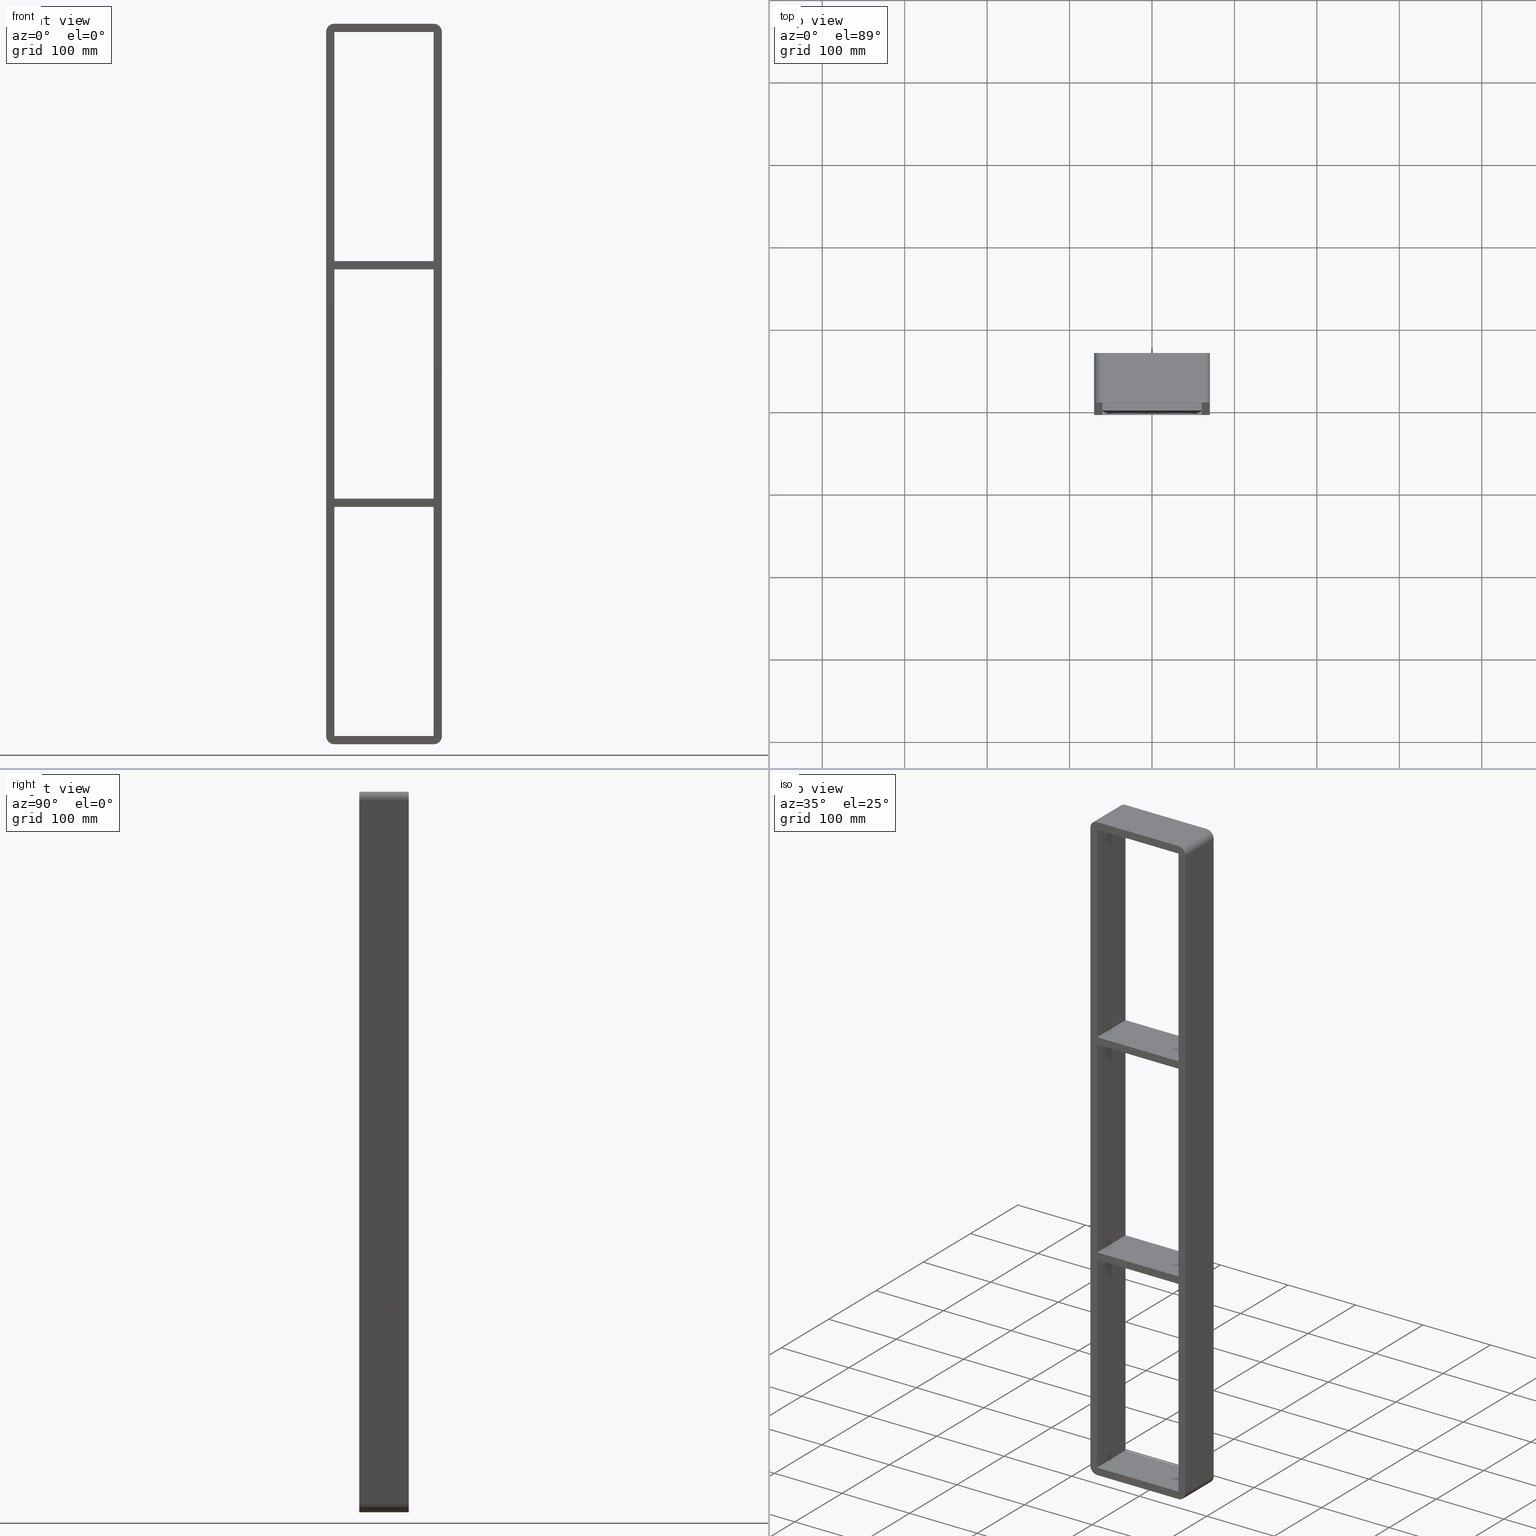
[diagram: canonical four-view strip — front | top / right | iso, engineering-drawing reading convention]
A machine part, canonical four-view strip (front | top / right | iso — engineering-drawing reading convention). The complete STEP part file that produces these views, byte-faithful:
ISO-10303-21;
HEADER;
/****************************************************************
 * Generated by software with PDElib inside                    *
 * PDElib Version v51a, created Wed 11/30/2011                  *
 * ITI Transcendata (http://www.transcendata.com/)              *
 ****************************************************************/
FILE_DESCRIPTION((''),'2;1');
FILE_NAME('C:\\RoxtecConfigurator\\CreatedFiles\\STEP\\S8+8+8X1.stp','2013-06-28T14:14:56',(''),(''),'Autodesk Inventor 2013','Autodesk Inventor 2013','');
FILE_SCHEMA(('AUTOMOTIVE_DESIGN { 1 0 10303 214 1 1 1 1 }'));
ENDSEC;
DATA;
#5=APPLICATION_CONTEXT('automotive design');
#6=APPLICATION_PROTOCOL_DEFINITION('International Standard','automotive_design',2001,#5);
#7=PRODUCT_CONTEXT('',#5,'mechanical');
#8=PRODUCT('roxtec S_SF_G','roxtec S_SF_G',$,(#7));
#9=PRODUCT_RELATED_PRODUCT_CATEGORY('part',$,(#8));
#10=PRODUCT_DEFINITION_FORMATION('',$,#8);
#11=PRODUCT_DEFINITION_CONTEXT('part definition',#5,'design');
#12=PRODUCT_DEFINITION('',$,#10,#11);
#18=(NAMED_UNIT(*)PLANE_ANGLE_UNIT()SI_UNIT($,.RADIAN.));
#19=DIMENSIONAL_EXPONENTS(0.0,0.0,0.0,0.0,0.0,0.0,0.0);
#20=PLANE_ANGLE_MEASURE_WITH_UNIT(PLANE_ANGLE_MEASURE(0.0174532925),#18);
#24=(CONVERSION_BASED_UNIT('DEGREE',#20)NAMED_UNIT(#19)PLANE_ANGLE_UNIT());
#28=(NAMED_UNIT(*)SI_UNIT($,.STERADIAN.)SOLID_ANGLE_UNIT());
#32=(LENGTH_UNIT()NAMED_UNIT(*)SI_UNIT(.MILLI.,.METRE.));
#34=UNCERTAINTY_MEASURE_WITH_UNIT(LENGTH_MEASURE(0.01),#32,'DISTANCE_ACCURACY_VALUE','');
#36=(GEOMETRIC_REPRESENTATION_CONTEXT(3)GLOBAL_UNCERTAINTY_ASSIGNED_CONTEXT((#34))GLOBAL_UNIT_ASSIGNED_CONTEXT((#24,#28,#32))REPRESENTATION_CONTEXT('None','None'));
#37=AXIS2_PLACEMENT_3D('',#38,#39,#40);
#38=CARTESIAN_POINT('',(0.0,0.0,0.0));
#39=DIRECTION('',(0.0,0.0,1.0));
#40=DIRECTION('',(1.0,0.0,0.0));
#41=SHAPE_REPRESENTATION('',(#37),#36);
#42=PRODUCT_DEFINITION_SHAPE('','',#12);
#43=SHAPE_DEFINITION_REPRESENTATION(#42,#41);
#49=(NAMED_UNIT(*)PLANE_ANGLE_UNIT()SI_UNIT($,.RADIAN.));
#50=DIMENSIONAL_EXPONENTS(0.0,0.0,0.0,0.0,0.0,0.0,0.0);
#51=PLANE_ANGLE_MEASURE_WITH_UNIT(PLANE_ANGLE_MEASURE(0.0174532925),#49);
#55=(CONVERSION_BASED_UNIT('DEGREE',#51)NAMED_UNIT(#50)PLANE_ANGLE_UNIT());
#59=(NAMED_UNIT(*)SI_UNIT($,.STERADIAN.)SOLID_ANGLE_UNIT());
#63=(LENGTH_UNIT()NAMED_UNIT(*)SI_UNIT(.MILLI.,.METRE.));
#65=UNCERTAINTY_MEASURE_WITH_UNIT(LENGTH_MEASURE(0.000001),#63,'DISTANCE_ACCURACY_VALUE','');
#67=(GEOMETRIC_REPRESENTATION_CONTEXT(3)GLOBAL_UNCERTAINTY_ASSIGNED_CONTEXT((#65))GLOBAL_UNIT_ASSIGNED_CONTEXT((#55,#59,#63))REPRESENTATION_CONTEXT('','3D'));
#68=CARTESIAN_POINT('',(60.249999999996362,-3.0,138.99999999999062));
#69=DIRECTION('',(0.0,0.0,-1.0));
#70=DIRECTION('',(-1.0,0.0,0.0));
#71=AXIS2_PLACEMENT_3D('',#68,#69,#70);
#72=PLANE('',#71);
#73=CARTESIAN_POINT('',(60.249999999996362,-3.0,138.99999999999062));
#74=VERTEX_POINT('',#73);
#75=CARTESIAN_POINT('',(-60.249999999999687,-3.0,138.99999999999056));
#76=VERTEX_POINT('',#75);
#77=CARTESIAN_POINT('',(60.249999999996362,-3.0,138.99999999999062));
#78=DIRECTION('',(-1.0,0.0,0.0));
#79=VECTOR('',#78,120.49999999999605);
#80=LINE('',#77,#79);
#81=EDGE_CURVE('',#74,#76,#80,.T.);
#82=ORIENTED_EDGE('',*,*,#81,.T.);
#83=CARTESIAN_POINT('',(-60.249999999999687,57.0,138.99999999999056));
#84=VERTEX_POINT('',#83);
#85=CARTESIAN_POINT('',(-60.25,57.000000000000007,138.99999999999056));
#86=DIRECTION('',(0.0,-1.0,0.0));
#87=VECTOR('',#86,60.000000000000007);
#88=LINE('',#85,#87);
#89=EDGE_CURVE('',#84,#76,#88,.T.);
#90=ORIENTED_EDGE('',*,*,#89,.F.);
#91=CARTESIAN_POINT('',(60.249999999996362,57.0,138.99999999999062));
#92=VERTEX_POINT('',#91);
#93=CARTESIAN_POINT('',(60.249999999996362,57.0,138.99999999999062));
#94=DIRECTION('',(-1.0,0.0,0.0));
#95=VECTOR('',#94,120.49999999999605);
#96=LINE('',#93,#95);
#97=EDGE_CURVE('',#92,#84,#96,.T.);
#98=ORIENTED_EDGE('',*,*,#97,.F.);
#99=CARTESIAN_POINT('',(60.249999999999993,-3.0,138.99999999999062));
#100=DIRECTION('',(0.0,1.0,0.0));
#101=VECTOR('',#100,60.000000000000007);
#102=LINE('',#99,#101);
#103=EDGE_CURVE('',#74,#92,#102,.T.);
#104=ORIENTED_EDGE('',*,*,#103,.F.);
#105=EDGE_LOOP('',(#82,#90,#98,#104));
#106=FACE_OUTER_BOUND('',#105,.T.);
#107=ADVANCED_FACE('',(#106),#72,.T.);
#108=CARTESIAN_POINT('',(-60.249999999999687,-3.0,148.99999999999994));
#109=DIRECTION('',(0.0,0.0,1.0));
#110=DIRECTION('',(1.0,0.0,0.0));
#111=AXIS2_PLACEMENT_3D('',#108,#109,#110);
#112=PLANE('',#111);
#113=CARTESIAN_POINT('',(-60.249999999999687,-3.0,148.99999999999994));
#114=VERTEX_POINT('',#113);
#115=CARTESIAN_POINT('',(60.249999999999915,-3.0,148.99999999999994));
#116=VERTEX_POINT('',#115);
#117=CARTESIAN_POINT('',(-60.249999999999687,-3.0,148.99999999999994));
#118=DIRECTION('',(1.0,0.0,0.0));
#119=VECTOR('',#118,120.4999999999996);
#120=LINE('',#117,#119);
#121=EDGE_CURVE('',#114,#116,#120,.T.);
#122=ORIENTED_EDGE('',*,*,#121,.T.);
#123=CARTESIAN_POINT('',(60.249999999999915,57.0,148.99999999999994));
#124=VERTEX_POINT('',#123);
#125=CARTESIAN_POINT('',(60.25,57.000000000000007,148.99999999999997));
#126=DIRECTION('',(0.0,-1.0,0.0));
#127=VECTOR('',#126,60.000000000000007);
#128=LINE('',#125,#127);
#129=EDGE_CURVE('',#124,#116,#128,.T.);
#130=ORIENTED_EDGE('',*,*,#129,.F.);
#131=CARTESIAN_POINT('',(-60.249999999999687,57.0,148.99999999999994));
#132=VERTEX_POINT('',#131);
#133=CARTESIAN_POINT('',(-60.249999999999687,57.0,148.99999999999994));
#134=DIRECTION('',(1.0,0.0,0.0));
#135=VECTOR('',#134,120.4999999999996);
#136=LINE('',#133,#135);
#137=EDGE_CURVE('',#132,#124,#136,.T.);
#138=ORIENTED_EDGE('',*,*,#137,.F.);
#139=CARTESIAN_POINT('',(-60.25,-3.0,148.99999999999994));
#140=DIRECTION('',(0.0,1.0,0.0));
#141=VECTOR('',#140,60.000000000000007);
#142=LINE('',#139,#141);
#143=EDGE_CURVE('',#114,#132,#142,.T.);
#144=ORIENTED_EDGE('',*,*,#143,.F.);
#145=EDGE_LOOP('',(#122,#130,#138,#144));
#146=FACE_OUTER_BOUND('',#145,.T.);
#147=ADVANCED_FACE('',(#146),#112,.T.);
#148=CARTESIAN_POINT('',(-60.25,0.0,-427.0));
#149=DIRECTION('',(-1.0,0.0,0.0));
#150=DIRECTION('',(0.0,0.0,1.0));
#151=AXIS2_PLACEMENT_3D('',#148,#149,#150);
#152=PLANE('',#151);
#153=ORIENTED_EDGE('',*,*,#143,.T.);
#154=CARTESIAN_POINT('',(-60.250000000000014,57.0,427.0));
#155=VERTEX_POINT('',#154);
#156=CARTESIAN_POINT('',(-60.25,57.0,427.0));
#157=DIRECTION('',(0.0,0.0,-1.0));
#158=VECTOR('',#157,278.0);
#159=LINE('',#156,#158);
#160=EDGE_CURVE('',#155,#132,#159,.T.);
#161=ORIENTED_EDGE('',*,*,#160,.F.);
#162=CARTESIAN_POINT('',(-60.250000000000014,-3.0,427.0));
#163=VERTEX_POINT('',#162);
#164=CARTESIAN_POINT('',(-60.25,-3.0,427.00000000000011));
#165=DIRECTION('',(0.0,1.0,0.0));
#166=VECTOR('',#165,60.0);
#167=LINE('',#164,#166);
#168=EDGE_CURVE('',#163,#155,#167,.T.);
#169=ORIENTED_EDGE('',*,*,#168,.F.);
#170=CARTESIAN_POINT('',(-60.25,-3.0,148.99999999999997));
#171=DIRECTION('',(0.0,0.0,1.0));
#172=VECTOR('',#171,278.0);
#173=LINE('',#170,#172);
#174=EDGE_CURVE('',#114,#163,#173,.T.);
#175=ORIENTED_EDGE('',*,*,#174,.F.);
#176=EDGE_LOOP('',(#153,#161,#169,#175));
#177=FACE_OUTER_BOUND('',#176,.T.);
#178=ADVANCED_FACE('',(#177),#152,.F.);
#179=CARTESIAN_POINT('',(60.249999999999993,0.0,427.00000000000011));
#180=DIRECTION('',(1.0,0.0,0.0));
#181=DIRECTION('',(0.0,0.0,-1.0));
#182=AXIS2_PLACEMENT_3D('',#179,#180,#181);
#183=PLANE('',#182);
#184=ORIENTED_EDGE('',*,*,#103,.T.);
#185=CARTESIAN_POINT('',(60.249999999999915,57.0,-139.00000000000006));
#186=VERTEX_POINT('',#185);
#187=CARTESIAN_POINT('',(60.249999999999993,57.0,-139.00000000000003));
#188=DIRECTION('',(0.0,0.0,1.0));
#189=VECTOR('',#188,277.99999999999068);
#190=LINE('',#187,#189);
#191=EDGE_CURVE('',#186,#92,#190,.T.);
#192=ORIENTED_EDGE('',*,*,#191,.F.);
#193=CARTESIAN_POINT('',(60.249999999999915,-3.0,-139.00000000000006));
#194=VERTEX_POINT('',#193);
#195=CARTESIAN_POINT('',(60.25,57.000000000000007,-139.00000000000006));
#196=DIRECTION('',(0.0,-1.0,0.0));
#197=VECTOR('',#196,60.000000000000007);
#198=LINE('',#195,#197);
#199=EDGE_CURVE('',#186,#194,#198,.T.);
#200=ORIENTED_EDGE('',*,*,#199,.T.);
#201=CARTESIAN_POINT('',(60.249999999999993,-3.0,138.99999999999062));
#202=DIRECTION('',(0.0,0.0,-1.0));
#203=VECTOR('',#202,277.99999999999068);
#204=LINE('',#201,#203);
#205=EDGE_CURVE('',#74,#194,#204,.T.);
#206=ORIENTED_EDGE('',*,*,#205,.F.);
#207=EDGE_LOOP('',(#184,#192,#200,#206));
#208=FACE_OUTER_BOUND('',#207,.T.);
#209=ADVANCED_FACE('',(#208),#183,.F.);
#210=CARTESIAN_POINT('',(60.249999999999993,0.0,427.00000000000011));
#211=DIRECTION('',(1.0,0.0,0.0));
#212=DIRECTION('',(0.0,0.0,-1.0));
#213=AXIS2_PLACEMENT_3D('',#210,#211,#212);
#214=PLANE('',#213);
#215=ORIENTED_EDGE('',*,*,#129,.T.);
#216=CARTESIAN_POINT('',(60.249999999999993,-3.0,427.0));
#217=VERTEX_POINT('',#216);
#218=CARTESIAN_POINT('',(60.249999999999993,-3.0,427.0));
#219=DIRECTION('',(0.0,0.0,-1.0));
#220=VECTOR('',#219,278.00000000000006);
#221=LINE('',#218,#220);
#222=EDGE_CURVE('',#217,#116,#221,.T.);
#223=ORIENTED_EDGE('',*,*,#222,.F.);
#224=CARTESIAN_POINT('',(60.249999999999993,57.0,427.0));
#225=VERTEX_POINT('',#224);
#226=CARTESIAN_POINT('',(60.249999999999993,-3.0,427.00000000000011));
#227=DIRECTION('',(0.0,1.0,0.0));
#228=VECTOR('',#227,60.0);
#229=LINE('',#226,#228);
#230=EDGE_CURVE('',#217,#225,#229,.T.);
#231=ORIENTED_EDGE('',*,*,#230,.T.);
#232=CARTESIAN_POINT('',(60.249999999999993,57.0,148.99999999999994));
#233=DIRECTION('',(0.0,0.0,1.0));
#234=VECTOR('',#233,278.00000000000006);
#235=LINE('',#232,#234);
#236=EDGE_CURVE('',#124,#225,#235,.T.);
#237=ORIENTED_EDGE('',*,*,#236,.F.);
#238=EDGE_LOOP('',(#215,#223,#231,#237));
#239=FACE_OUTER_BOUND('',#238,.T.);
#240=ADVANCED_FACE('',(#239),#214,.F.);
#241=CARTESIAN_POINT('',(60.249999999996362,-3.0,-149.00000000000941));
#242=DIRECTION('',(0.0,0.0,-1.0));
#243=DIRECTION('',(-1.0,0.0,0.0));
#244=AXIS2_PLACEMENT_3D('',#241,#242,#243);
#245=PLANE('',#244);
#246=CARTESIAN_POINT('',(60.249999999996362,-3.0,-149.00000000000941));
#247=VERTEX_POINT('',#246);
#248=CARTESIAN_POINT('',(-60.249999999999687,-3.0,-149.00000000000944));
#249=VERTEX_POINT('',#248);
#250=CARTESIAN_POINT('',(60.249999999996362,-3.0,-149.00000000000941));
#251=DIRECTION('',(-1.0,0.0,0.0));
#252=VECTOR('',#251,120.49999999999605);
#253=LINE('',#250,#252);
#254=EDGE_CURVE('',#247,#249,#253,.T.);
#255=ORIENTED_EDGE('',*,*,#254,.T.);
#256=CARTESIAN_POINT('',(-60.249999999999687,57.0,-149.00000000000944));
#257=VERTEX_POINT('',#256);
#258=CARTESIAN_POINT('',(-60.25,57.000000000000007,-149.00000000000946));
#259=DIRECTION('',(0.0,-1.0,0.0));
#260=VECTOR('',#259,60.000000000000007);
#261=LINE('',#258,#260);
#262=EDGE_CURVE('',#257,#249,#261,.T.);
#263=ORIENTED_EDGE('',*,*,#262,.F.);
#264=CARTESIAN_POINT('',(60.249999999996362,57.0,-149.00000000000941));
#265=VERTEX_POINT('',#264);
#266=CARTESIAN_POINT('',(60.249999999996362,57.0,-149.00000000000941));
#267=DIRECTION('',(-1.0,0.0,0.0));
#268=VECTOR('',#267,120.49999999999605);
#269=LINE('',#266,#268);
#270=EDGE_CURVE('',#265,#257,#269,.T.);
#271=ORIENTED_EDGE('',*,*,#270,.F.);
#272=CARTESIAN_POINT('',(60.249999999999993,-3.0,-149.00000000000938));
#273=DIRECTION('',(0.0,1.0,0.0));
#274=VECTOR('',#273,60.000000000000007);
#275=LINE('',#272,#274);
#276=EDGE_CURVE('',#247,#265,#275,.T.);
#277=ORIENTED_EDGE('',*,*,#276,.F.);
#278=EDGE_LOOP('',(#255,#263,#271,#277));
#279=FACE_OUTER_BOUND('',#278,.T.);
#280=ADVANCED_FACE('',(#279),#245,.T.);
#281=CARTESIAN_POINT('',(-60.249999999999687,-3.0,-139.00000000000006));
#282=DIRECTION('',(0.0,0.0,1.0));
#283=DIRECTION('',(1.0,0.0,0.0));
#284=AXIS2_PLACEMENT_3D('',#281,#282,#283);
#285=PLANE('',#284);
#286=CARTESIAN_POINT('',(-60.249999999999687,-3.0,-139.00000000000006));
#287=VERTEX_POINT('',#286);
#288=CARTESIAN_POINT('',(-60.249999999999687,-3.0,-139.00000000000006));
#289=DIRECTION('',(1.0,0.0,0.0));
#290=VECTOR('',#289,120.4999999999996);
#291=LINE('',#288,#290);
#292=EDGE_CURVE('',#287,#194,#291,.T.);
#293=ORIENTED_EDGE('',*,*,#292,.T.);
#294=ORIENTED_EDGE('',*,*,#199,.F.);
#295=CARTESIAN_POINT('',(-60.249999999999687,57.0,-139.00000000000006));
#296=VERTEX_POINT('',#295);
#297=CARTESIAN_POINT('',(-60.249999999999687,57.0,-139.00000000000006));
#298=DIRECTION('',(1.0,0.0,0.0));
#299=VECTOR('',#298,120.4999999999996);
#300=LINE('',#297,#299);
#301=EDGE_CURVE('',#296,#186,#300,.T.);
#302=ORIENTED_EDGE('',*,*,#301,.F.);
#303=CARTESIAN_POINT('',(-60.25,-3.0,-139.00000000000006));
#304=DIRECTION('',(0.0,1.0,0.0));
#305=VECTOR('',#304,60.000000000000007);
#306=LINE('',#303,#305);
#307=EDGE_CURVE('',#287,#296,#306,.T.);
#308=ORIENTED_EDGE('',*,*,#307,.F.);
#309=EDGE_LOOP('',(#293,#294,#302,#308));
#310=FACE_OUTER_BOUND('',#309,.T.);
#311=ADVANCED_FACE('',(#310),#285,.T.);
#312=CARTESIAN_POINT('',(-60.25,0.0,-427.0));
#313=DIRECTION('',(-1.0,0.0,0.0));
#314=DIRECTION('',(0.0,0.0,1.0));
#315=AXIS2_PLACEMENT_3D('',#312,#313,#314);
#316=PLANE('',#315);
#317=ORIENTED_EDGE('',*,*,#89,.T.);
#318=CARTESIAN_POINT('',(-60.25,-3.0,-139.00000000000006));
#319=DIRECTION('',(0.0,0.0,1.0));
#320=VECTOR('',#319,277.99999999999068);
#321=LINE('',#318,#320);
#322=EDGE_CURVE('',#287,#76,#321,.T.);
#323=ORIENTED_EDGE('',*,*,#322,.F.);
#324=ORIENTED_EDGE('',*,*,#307,.T.);
#325=CARTESIAN_POINT('',(-60.25,57.0,138.99999999999059));
#326=DIRECTION('',(0.0,0.0,-1.0));
#327=VECTOR('',#326,277.99999999999068);
#328=LINE('',#325,#327);
#329=EDGE_CURVE('',#84,#296,#328,.T.);
#330=ORIENTED_EDGE('',*,*,#329,.F.);
#331=EDGE_LOOP('',(#317,#323,#324,#330));
#332=FACE_OUTER_BOUND('',#331,.T.);
#333=ADVANCED_FACE('',(#332),#316,.F.);
#334=CARTESIAN_POINT('',(60.249999999999993,0.0,427.00000000000011));
#335=DIRECTION('',(1.0,0.0,0.0));
#336=DIRECTION('',(0.0,0.0,-1.0));
#337=AXIS2_PLACEMENT_3D('',#334,#335,#336);
#338=PLANE('',#337);
#339=ORIENTED_EDGE('',*,*,#276,.T.);
#340=CARTESIAN_POINT('',(60.249999999999993,57.0,-427.0));
#341=VERTEX_POINT('',#340);
#342=CARTESIAN_POINT('',(60.249999999999993,57.0,-427.0));
#343=DIRECTION('',(0.0,0.0,1.0));
#344=VECTOR('',#343,277.99999999999056);
#345=LINE('',#342,#344);
#346=EDGE_CURVE('',#341,#265,#345,.T.);
#347=ORIENTED_EDGE('',*,*,#346,.F.);
#348=CARTESIAN_POINT('',(60.249999999999993,-3.0,-427.0));
#349=VERTEX_POINT('',#348);
#350=CARTESIAN_POINT('',(60.249999999999993,57.0,-427.0));
#351=DIRECTION('',(0.0,-1.0,0.0));
#352=VECTOR('',#351,60.0);
#353=LINE('',#350,#352);
#354=EDGE_CURVE('',#341,#349,#353,.T.);
#355=ORIENTED_EDGE('',*,*,#354,.T.);
#356=CARTESIAN_POINT('',(60.249999999999993,-3.0,-149.00000000000946));
#357=DIRECTION('',(0.0,0.0,-1.0));
#358=VECTOR('',#357,277.99999999999056);
#359=LINE('',#356,#358);
#360=EDGE_CURVE('',#247,#349,#359,.T.);
#361=ORIENTED_EDGE('',*,*,#360,.F.);
#362=EDGE_LOOP('',(#339,#347,#355,#361));
#363=FACE_OUTER_BOUND('',#362,.T.);
#364=ADVANCED_FACE('',(#363),#338,.F.);
#365=CARTESIAN_POINT('',(60.25,0.0,-426.99999999999994));
#366=DIRECTION('',(0.0,1.0,0.0));
#367=DIRECTION('',(0.707106781186547,0.0,-0.707106781186547));
#368=AXIS2_PLACEMENT_3D('',#365,#366,#367);
#369=CYLINDRICAL_SURFACE('',#368,10.0);
#370=CARTESIAN_POINT('',(60.25,57.0,-436.99999999999994));
#371=VERTEX_POINT('',#370);
#372=CARTESIAN_POINT('',(70.25,57.0,-426.99999999999994));
#373=VERTEX_POINT('',#372);
#374=CARTESIAN_POINT('',(60.25,57.0,-426.99999999999994));
#375=DIRECTION('',(0.0,-1.0,0.0));
#376=DIRECTION('',(0.707106781186547,0.0,-0.707106781186547));
#377=AXIS2_PLACEMENT_3D('',#374,#375,#376);
#378=CIRCLE('',#377,9.999999999999998);
#379=EDGE_CURVE('',#371,#373,#378,.T.);
#380=ORIENTED_EDGE('',*,*,#379,.T.);
#381=CARTESIAN_POINT('',(70.25,-3.0,-426.99999999999994));
#382=VERTEX_POINT('',#381);
#383=CARTESIAN_POINT('',(70.25,57.0,-426.99999999999994));
#384=DIRECTION('',(0.0,-1.0,0.0));
#385=VECTOR('',#384,60.0);
#386=LINE('',#383,#385);
#387=EDGE_CURVE('',#373,#382,#386,.T.);
#388=ORIENTED_EDGE('',*,*,#387,.T.);
#389=CARTESIAN_POINT('',(60.25,-3.0,-436.99999999999994));
#390=VERTEX_POINT('',#389);
#391=CARTESIAN_POINT('',(60.25,-3.0,-426.99999999999994));
#392=DIRECTION('',(0.0,1.0,0.0));
#393=DIRECTION('',(0.707106781186547,0.0,-0.707106781186547));
#394=AXIS2_PLACEMENT_3D('',#391,#392,#393);
#395=CIRCLE('',#394,9.999999999999998);
#396=EDGE_CURVE('',#382,#390,#395,.T.);
#397=ORIENTED_EDGE('',*,*,#396,.T.);
#398=CARTESIAN_POINT('',(60.25,-3.0,-436.99999999999994));
#399=DIRECTION('',(0.0,1.0,0.0));
#400=VECTOR('',#399,60.0);
#401=LINE('',#398,#400);
#402=EDGE_CURVE('',#390,#371,#401,.T.);
#403=ORIENTED_EDGE('',*,*,#402,.T.);
#404=EDGE_LOOP('',(#380,#388,#397,#403));
#405=FACE_OUTER_BOUND('',#404,.T.);
#406=ADVANCED_FACE('',(#405),#369,.T.);
#407=CARTESIAN_POINT('',(0.0,-3.0,6.723716E-014));
#408=DIRECTION('',(0.0,1.0,0.0));
#409=DIRECTION('',(0.0,0.0,1.0));
#410=AXIS2_PLACEMENT_3D('',#407,#408,#409);
#411=PLANE('',#410);
#412=ORIENTED_EDGE('',*,*,#396,.F.);
#413=CARTESIAN_POINT('',(70.25,-3.0,427.00000000000011));
#414=VERTEX_POINT('',#413);
#415=CARTESIAN_POINT('',(70.25,-3.0,-426.99999999999989));
#416=DIRECTION('',(0.0,0.0,1.0));
#417=VECTOR('',#416,854.0);
#418=LINE('',#415,#417);
#419=EDGE_CURVE('',#382,#414,#418,.T.);
#420=ORIENTED_EDGE('',*,*,#419,.T.);
#421=CARTESIAN_POINT('',(60.25,-3.0,437.00000000000011));
#422=VERTEX_POINT('',#421);
#423=CARTESIAN_POINT('',(60.25,-3.0,427.00000000000011));
#424=DIRECTION('',(0.0,1.0,0.0));
#425=DIRECTION('',(0.707106781186547,0.0,0.707106781186547));
#426=AXIS2_PLACEMENT_3D('',#423,#424,#425);
#427=CIRCLE('',#426,9.999999999999998);
#428=EDGE_CURVE('',#422,#414,#427,.T.);
#429=ORIENTED_EDGE('',*,*,#428,.F.);
#430=CARTESIAN_POINT('',(-60.25,-3.0,437.00000000000011));
#431=VERTEX_POINT('',#430);
#432=CARTESIAN_POINT('',(60.25,-3.0,437.00000000000011));
#433=DIRECTION('',(-1.0,0.0,0.0));
#434=VECTOR('',#433,120.5);
#435=LINE('',#432,#434);
#436=EDGE_CURVE('',#422,#431,#435,.T.);
#437=ORIENTED_EDGE('',*,*,#436,.T.);
#438=CARTESIAN_POINT('',(-70.25,-3.0,427.00000000000011));
#439=VERTEX_POINT('',#438);
#440=CARTESIAN_POINT('',(-60.25,-3.0,427.00000000000011));
#441=DIRECTION('',(0.0,1.0,0.0));
#442=DIRECTION('',(-0.707106781186547,0.0,0.707106781186547));
#443=AXIS2_PLACEMENT_3D('',#440,#441,#442);
#444=CIRCLE('',#443,9.999999999999998);
#445=EDGE_CURVE('',#439,#431,#444,.T.);
#446=ORIENTED_EDGE('',*,*,#445,.F.);
#447=CARTESIAN_POINT('',(-70.25,-3.0,-426.99999999999994));
#448=VERTEX_POINT('',#447);
#449=CARTESIAN_POINT('',(-70.25,-3.0,427.00000000000006));
#450=DIRECTION('',(0.0,0.0,-1.0));
#451=VECTOR('',#450,854.0);
#452=LINE('',#449,#451);
#453=EDGE_CURVE('',#439,#448,#452,.T.);
#454=ORIENTED_EDGE('',*,*,#453,.T.);
#455=CARTESIAN_POINT('',(-60.25,-3.0,-436.99999999999994));
#456=VERTEX_POINT('',#455);
#457=CARTESIAN_POINT('',(-60.25,-3.0,-426.99999999999994));
#458=DIRECTION('',(0.0,1.0,0.0));
#459=DIRECTION('',(-0.707106781186547,0.0,-0.707106781186547));
#460=AXIS2_PLACEMENT_3D('',#457,#458,#459);
#461=CIRCLE('',#460,9.999999999999998);
#462=EDGE_CURVE('',#456,#448,#461,.T.);
#463=ORIENTED_EDGE('',*,*,#462,.F.);
#464=CARTESIAN_POINT('',(-60.25,-3.0,-436.99999999999994));
#465=DIRECTION('',(1.0,0.0,0.0));
#466=VECTOR('',#465,120.5);
#467=LINE('',#464,#466);
#468=EDGE_CURVE('',#456,#390,#467,.T.);
#469=ORIENTED_EDGE('',*,*,#468,.T.);
#470=EDGE_LOOP('',(#412,#420,#429,#437,#446,#454,#463,#469));
#471=FACE_OUTER_BOUND('',#470,.T.);
#472=ORIENTED_EDGE('',*,*,#174,.T.);
#473=CARTESIAN_POINT('',(-60.250000000000014,-3.0,427.00000000000011));
#474=DIRECTION('',(1.0,0.0,0.0));
#475=VECTOR('',#474,120.50000000000001);
#476=LINE('',#473,#475);
#477=EDGE_CURVE('',#163,#217,#476,.T.);
#478=ORIENTED_EDGE('',*,*,#477,.T.);
#479=ORIENTED_EDGE('',*,*,#222,.T.);
#480=ORIENTED_EDGE('',*,*,#121,.F.);
#481=EDGE_LOOP('',(#472,#478,#479,#480));
#482=FACE_BOUND('',#481,.T.);
#483=ORIENTED_EDGE('',*,*,#81,.F.);
#484=ORIENTED_EDGE('',*,*,#205,.T.);
#485=ORIENTED_EDGE('',*,*,#292,.F.);
#486=ORIENTED_EDGE('',*,*,#322,.T.);
#487=EDGE_LOOP('',(#483,#484,#485,#486));
#488=FACE_BOUND('',#487,.T.);
#489=ORIENTED_EDGE('',*,*,#254,.F.);
#490=ORIENTED_EDGE('',*,*,#360,.T.);
#491=CARTESIAN_POINT('',(-60.250000000000014,-3.0,-427.0));
#492=VERTEX_POINT('',#491);
#493=CARTESIAN_POINT('',(60.249999999999993,-3.0,-427.0));
#494=DIRECTION('',(-1.0,0.0,0.0));
#495=VECTOR('',#494,120.5);
#496=LINE('',#493,#495);
#497=EDGE_CURVE('',#349,#492,#496,.T.);
#498=ORIENTED_EDGE('',*,*,#497,.T.);
#499=CARTESIAN_POINT('',(-60.25,-3.0,-427.0));
#500=DIRECTION('',(0.0,0.0,1.0));
#501=VECTOR('',#500,277.99999999999056);
#502=LINE('',#499,#501);
#503=EDGE_CURVE('',#492,#249,#502,.T.);
#504=ORIENTED_EDGE('',*,*,#503,.T.);
#505=EDGE_LOOP('',(#489,#490,#498,#504));
#506=FACE_BOUND('',#505,.T.);
#507=ADVANCED_FACE('',(#471,#482,#488,#506),#411,.F.);
#508=CARTESIAN_POINT('',(70.25,0.0,437.00000000000011));
#509=DIRECTION('',(1.0,0.0,0.0));
#510=DIRECTION('',(0.0,0.0,-1.0));
#511=AXIS2_PLACEMENT_3D('',#508,#509,#510);
#512=PLANE('',#511);
#513=ORIENTED_EDGE('',*,*,#387,.F.);
#514=CARTESIAN_POINT('',(70.25,57.0,427.00000000000011));
#515=VERTEX_POINT('',#514);
#516=CARTESIAN_POINT('',(70.25,57.0,427.00000000000011));
#517=DIRECTION('',(0.0,0.0,-1.0));
#518=VECTOR('',#517,854.0);
#519=LINE('',#516,#518);
#520=EDGE_CURVE('',#515,#373,#519,.T.);
#521=ORIENTED_EDGE('',*,*,#520,.F.);
#522=CARTESIAN_POINT('',(70.25,-3.0,427.00000000000011));
#523=DIRECTION('',(0.0,1.0,0.0));
#524=VECTOR('',#523,60.0);
#525=LINE('',#522,#524);
#526=EDGE_CURVE('',#414,#515,#525,.T.);
#527=ORIENTED_EDGE('',*,*,#526,.F.);
#528=ORIENTED_EDGE('',*,*,#419,.F.);
#529=EDGE_LOOP('',(#513,#521,#527,#528));
#530=FACE_OUTER_BOUND('',#529,.T.);
#531=ADVANCED_FACE('',(#530),#512,.T.);
#532=CARTESIAN_POINT('',(60.25,0.0,427.00000000000011));
#533=DIRECTION('',(0.0,-1.0,0.0));
#534=DIRECTION('',(0.707106781186547,0.0,0.707106781186547));
#535=AXIS2_PLACEMENT_3D('',#532,#533,#534);
#536=CYLINDRICAL_SURFACE('',#535,10.0);
#537=ORIENTED_EDGE('',*,*,#428,.T.);
#538=ORIENTED_EDGE('',*,*,#526,.T.);
#539=CARTESIAN_POINT('',(60.25,57.0,437.00000000000011));
#540=VERTEX_POINT('',#539);
#541=CARTESIAN_POINT('',(60.25,57.0,427.00000000000011));
#542=DIRECTION('',(0.0,-1.0,0.0));
#543=DIRECTION('',(0.707106781186547,0.0,0.707106781186547));
#544=AXIS2_PLACEMENT_3D('',#541,#542,#543);
#545=CIRCLE('',#544,9.999999999999998);
#546=EDGE_CURVE('',#515,#540,#545,.T.);
#547=ORIENTED_EDGE('',*,*,#546,.T.);
#548=CARTESIAN_POINT('',(60.25,57.0,437.00000000000011));
#549=DIRECTION('',(0.0,-1.0,0.0));
#550=VECTOR('',#549,60.0);
#551=LINE('',#548,#550);
#552=EDGE_CURVE('',#540,#422,#551,.T.);
#553=ORIENTED_EDGE('',*,*,#552,.T.);
#554=EDGE_LOOP('',(#537,#538,#547,#553));
#555=FACE_OUTER_BOUND('',#554,.T.);
#556=ADVANCED_FACE('',(#555),#536,.T.);
#557=CARTESIAN_POINT('',(-60.25,0.0,-426.99999999999994));
#558=DIRECTION('',(0.0,1.0,0.0));
#559=DIRECTION('',(-0.707106781186547,0.0,-0.707106781186547));
#560=AXIS2_PLACEMENT_3D('',#557,#558,#559);
#561=CYLINDRICAL_SURFACE('',#560,10.0);
#562=CARTESIAN_POINT('',(-70.25,57.0,-426.99999999999994));
#563=VERTEX_POINT('',#562);
#564=CARTESIAN_POINT('',(-60.25,57.0,-436.99999999999994));
#565=VERTEX_POINT('',#564);
#566=CARTESIAN_POINT('',(-60.25,57.0,-426.99999999999994));
#567=DIRECTION('',(0.0,-1.0,0.0));
#568=DIRECTION('',(-0.707106781186547,0.0,-0.707106781186547));
#569=AXIS2_PLACEMENT_3D('',#566,#567,#568);
#570=CIRCLE('',#569,9.999999999999998);
#571=EDGE_CURVE('',#563,#565,#570,.T.);
#572=ORIENTED_EDGE('',*,*,#571,.T.);
#573=CARTESIAN_POINT('',(-60.25,57.0,-436.99999999999994));
#574=DIRECTION('',(0.0,-1.0,0.0));
#575=VECTOR('',#574,60.0);
#576=LINE('',#573,#575);
#577=EDGE_CURVE('',#565,#456,#576,.T.);
#578=ORIENTED_EDGE('',*,*,#577,.T.);
#579=ORIENTED_EDGE('',*,*,#462,.T.);
#580=CARTESIAN_POINT('',(-70.25,-3.0,-426.99999999999994));
#581=DIRECTION('',(0.0,1.0,0.0));
#582=VECTOR('',#581,60.0);
#583=LINE('',#580,#582);
#584=EDGE_CURVE('',#448,#563,#583,.T.);
#585=ORIENTED_EDGE('',*,*,#584,.T.);
#586=EDGE_LOOP('',(#572,#578,#579,#585));
#587=FACE_OUTER_BOUND('',#586,.T.);
#588=ADVANCED_FACE('',(#587),#561,.T.);
#589=CARTESIAN_POINT('',(-70.25,0.0,-436.99999999999994));
#590=DIRECTION('',(-1.0,0.0,0.0));
#591=DIRECTION('',(0.0,0.0,1.0));
#592=AXIS2_PLACEMENT_3D('',#589,#590,#591);
#593=PLANE('',#592);
#594=ORIENTED_EDGE('',*,*,#584,.F.);
#595=ORIENTED_EDGE('',*,*,#453,.F.);
#596=CARTESIAN_POINT('',(-70.25,57.0,427.00000000000011));
#597=VERTEX_POINT('',#596);
#598=CARTESIAN_POINT('',(-70.25,57.0,427.00000000000011));
#599=DIRECTION('',(0.0,-1.0,0.0));
#600=VECTOR('',#599,60.0);
#601=LINE('',#598,#600);
#602=EDGE_CURVE('',#597,#439,#601,.T.);
#603=ORIENTED_EDGE('',*,*,#602,.F.);
#604=CARTESIAN_POINT('',(-70.25,57.0,-426.99999999999994));
#605=DIRECTION('',(0.0,0.0,1.0));
#606=VECTOR('',#605,854.0);
#607=LINE('',#604,#606);
#608=EDGE_CURVE('',#563,#597,#607,.T.);
#609=ORIENTED_EDGE('',*,*,#608,.F.);
#610=EDGE_LOOP('',(#594,#595,#603,#609));
#611=FACE_OUTER_BOUND('',#610,.T.);
#612=ADVANCED_FACE('',(#611),#593,.T.);
#613=CARTESIAN_POINT('',(-60.25,0.0,427.00000000000011));
#614=DIRECTION('',(0.0,1.0,0.0));
#615=DIRECTION('',(-0.707106781186547,0.0,0.707106781186547));
#616=AXIS2_PLACEMENT_3D('',#613,#614,#615);
#617=CYLINDRICAL_SURFACE('',#616,10.0);
#618=CARTESIAN_POINT('',(-60.25,57.0,437.00000000000011));
#619=VERTEX_POINT('',#618);
#620=CARTESIAN_POINT('',(-60.25,57.0,427.00000000000011));
#621=DIRECTION('',(0.0,-1.0,0.0));
#622=DIRECTION('',(-0.707106781186547,0.0,0.707106781186547));
#623=AXIS2_PLACEMENT_3D('',#620,#621,#622);
#624=CIRCLE('',#623,9.999999999999998);
#625=EDGE_CURVE('',#619,#597,#624,.T.);
#626=ORIENTED_EDGE('',*,*,#625,.T.);
#627=ORIENTED_EDGE('',*,*,#602,.T.);
#628=ORIENTED_EDGE('',*,*,#445,.T.);
#629=CARTESIAN_POINT('',(-60.25,-3.0,437.00000000000011));
#630=DIRECTION('',(0.0,1.0,0.0));
#631=VECTOR('',#630,60.0);
#632=LINE('',#629,#631);
#633=EDGE_CURVE('',#431,#619,#632,.T.);
#634=ORIENTED_EDGE('',*,*,#633,.T.);
#635=EDGE_LOOP('',(#626,#627,#628,#634));
#636=FACE_OUTER_BOUND('',#635,.T.);
#637=ADVANCED_FACE('',(#636),#617,.T.);
#638=CARTESIAN_POINT('',(-70.25,0.0,437.00000000000011));
#639=DIRECTION('',(0.0,0.0,1.0));
#640=DIRECTION('',(1.0,0.0,0.0));
#641=AXIS2_PLACEMENT_3D('',#638,#639,#640);
#642=PLANE('',#641);
#643=ORIENTED_EDGE('',*,*,#552,.F.);
#644=CARTESIAN_POINT('',(-60.25,57.0,437.00000000000011));
#645=DIRECTION('',(1.0,0.0,0.0));
#646=VECTOR('',#645,120.5);
#647=LINE('',#644,#646);
#648=EDGE_CURVE('',#619,#540,#647,.T.);
#649=ORIENTED_EDGE('',*,*,#648,.F.);
#650=ORIENTED_EDGE('',*,*,#633,.F.);
#651=ORIENTED_EDGE('',*,*,#436,.F.);
#652=EDGE_LOOP('',(#643,#649,#650,#651));
#653=FACE_OUTER_BOUND('',#652,.T.);
#654=ADVANCED_FACE('',(#653),#642,.T.);
#655=CARTESIAN_POINT('',(-60.25,0.0,427.00000000000011));
#656=DIRECTION('',(0.0,0.0,1.0));
#657=DIRECTION('',(1.0,0.0,0.0));
#658=AXIS2_PLACEMENT_3D('',#655,#656,#657);
#659=PLANE('',#658);
#660=ORIENTED_EDGE('',*,*,#230,.F.);
#661=ORIENTED_EDGE('',*,*,#477,.F.);
#662=ORIENTED_EDGE('',*,*,#168,.T.);
#663=CARTESIAN_POINT('',(60.25,57.0,427.00000000000011));
#664=DIRECTION('',(-1.0,0.0,0.0));
#665=VECTOR('',#664,120.50000000000001);
#666=LINE('',#663,#665);
#667=EDGE_CURVE('',#225,#155,#666,.T.);
#668=ORIENTED_EDGE('',*,*,#667,.F.);
#669=EDGE_LOOP('',(#660,#661,#662,#668));
#670=FACE_OUTER_BOUND('',#669,.T.);
#671=ADVANCED_FACE('',(#670),#659,.F.);
#672=CARTESIAN_POINT('',(-60.25,0.0,-427.0));
#673=DIRECTION('',(-1.0,0.0,0.0));
#674=DIRECTION('',(0.0,0.0,1.0));
#675=AXIS2_PLACEMENT_3D('',#672,#673,#674);
#676=PLANE('',#675);
#677=ORIENTED_EDGE('',*,*,#262,.T.);
#678=ORIENTED_EDGE('',*,*,#503,.F.);
#679=CARTESIAN_POINT('',(-60.250000000000014,57.0,-427.0));
#680=VERTEX_POINT('',#679);
#681=CARTESIAN_POINT('',(-60.25,-3.0,-427.0));
#682=DIRECTION('',(0.0,1.0,0.0));
#683=VECTOR('',#682,60.0);
#684=LINE('',#681,#683);
#685=EDGE_CURVE('',#492,#680,#684,.T.);
#686=ORIENTED_EDGE('',*,*,#685,.T.);
#687=CARTESIAN_POINT('',(-60.25,57.0,-149.00000000000944));
#688=DIRECTION('',(0.0,0.0,-1.0));
#689=VECTOR('',#688,277.99999999999056);
#690=LINE('',#687,#689);
#691=EDGE_CURVE('',#257,#680,#690,.T.);
#692=ORIENTED_EDGE('',*,*,#691,.F.);
#693=EDGE_LOOP('',(#677,#678,#686,#692));
#694=FACE_OUTER_BOUND('',#693,.T.);
#695=ADVANCED_FACE('',(#694),#676,.F.);
#696=CARTESIAN_POINT('',(60.249999999999993,0.0,-427.0));
#697=DIRECTION('',(0.0,0.0,-1.0));
#698=DIRECTION('',(-1.0,0.0,0.0));
#699=AXIS2_PLACEMENT_3D('',#696,#697,#698);
#700=PLANE('',#699);
#701=ORIENTED_EDGE('',*,*,#685,.F.);
#702=ORIENTED_EDGE('',*,*,#497,.F.);
#703=ORIENTED_EDGE('',*,*,#354,.F.);
#704=CARTESIAN_POINT('',(-60.250000000000014,57.0,-427.0));
#705=DIRECTION('',(1.0,0.0,0.0));
#706=VECTOR('',#705,120.5);
#707=LINE('',#704,#706);
#708=EDGE_CURVE('',#680,#341,#707,.T.);
#709=ORIENTED_EDGE('',*,*,#708,.F.);
#710=EDGE_LOOP('',(#701,#702,#703,#709));
#711=FACE_OUTER_BOUND('',#710,.T.);
#712=ADVANCED_FACE('',(#711),#700,.F.);
#713=CARTESIAN_POINT('',(70.25,0.0,-436.99999999999994));
#714=DIRECTION('',(0.0,0.0,-1.0));
#715=DIRECTION('',(-1.0,0.0,0.0));
#716=AXIS2_PLACEMENT_3D('',#713,#714,#715);
#717=PLANE('',#716);
#718=ORIENTED_EDGE('',*,*,#402,.F.);
#719=ORIENTED_EDGE('',*,*,#468,.F.);
#720=ORIENTED_EDGE('',*,*,#577,.F.);
#721=CARTESIAN_POINT('',(60.25,57.0,-436.99999999999994));
#722=DIRECTION('',(-1.0,0.0,0.0));
#723=VECTOR('',#722,120.5);
#724=LINE('',#721,#723);
#725=EDGE_CURVE('',#371,#565,#724,.T.);
#726=ORIENTED_EDGE('',*,*,#725,.F.);
#727=EDGE_LOOP('',(#718,#719,#720,#726));
#728=FACE_OUTER_BOUND('',#727,.T.);
#729=ADVANCED_FACE('',(#728),#717,.T.);
#730=CARTESIAN_POINT('',(0.0,57.0,6.723716E-014));
#731=DIRECTION('',(0.0,1.0,0.0));
#732=DIRECTION('',(0.0,0.0,1.0));
#733=AXIS2_PLACEMENT_3D('',#730,#731,#732);
#734=PLANE('',#733);
#735=ORIENTED_EDGE('',*,*,#379,.F.);
#736=ORIENTED_EDGE('',*,*,#725,.T.);
#737=ORIENTED_EDGE('',*,*,#571,.F.);
#738=ORIENTED_EDGE('',*,*,#608,.T.);
#739=ORIENTED_EDGE('',*,*,#625,.F.);
#740=ORIENTED_EDGE('',*,*,#648,.T.);
#741=ORIENTED_EDGE('',*,*,#546,.F.);
#742=ORIENTED_EDGE('',*,*,#520,.T.);
#743=EDGE_LOOP('',(#735,#736,#737,#738,#739,#740,#741,#742));
#744=FACE_OUTER_BOUND('',#743,.T.);
#745=ORIENTED_EDGE('',*,*,#329,.T.);
#746=ORIENTED_EDGE('',*,*,#301,.T.);
#747=ORIENTED_EDGE('',*,*,#191,.T.);
#748=ORIENTED_EDGE('',*,*,#97,.T.);
#749=EDGE_LOOP('',(#745,#746,#747,#748));
#750=FACE_BOUND('',#749,.T.);
#751=ORIENTED_EDGE('',*,*,#691,.T.);
#752=ORIENTED_EDGE('',*,*,#708,.T.);
#753=ORIENTED_EDGE('',*,*,#346,.T.);
#754=ORIENTED_EDGE('',*,*,#270,.T.);
#755=EDGE_LOOP('',(#751,#752,#753,#754));
#756=FACE_BOUND('',#755,.T.);
#757=ORIENTED_EDGE('',*,*,#137,.T.);
#758=ORIENTED_EDGE('',*,*,#236,.T.);
#759=ORIENTED_EDGE('',*,*,#667,.T.);
#760=ORIENTED_EDGE('',*,*,#160,.T.);
#761=EDGE_LOOP('',(#757,#758,#759,#760));
#762=FACE_BOUND('',#761,.T.);
#763=ADVANCED_FACE('',(#744,#750,#756,#762),#734,.T.);
#764=CLOSED_SHELL('',(#107,#147,#178,#209,#240,#280,#311,#333,#364,#406,#507,#531,#556,#588,#612,#637,#654,#671,#695,#712,#729,#763));
#765=MANIFOLD_SOLID_BREP('Solid1',#764);
#766=COLOUR_RGB('Silicon Nitride - Polished',0.800000011920929,0.796078443527222,0.701960802078247);
#767=FILL_AREA_STYLE_COLOUR('Silicon Nitride - Polished',#766);
#768=FILL_AREA_STYLE('Silicon Nitride - Polished',(#767));
#769=SURFACE_STYLE_FILL_AREA(#768);
#770=SURFACE_SIDE_STYLE('Silicon Nitride - Polished',(#769));
#771=SURFACE_STYLE_USAGE(.BOTH.,#770);
#772=PRESENTATION_STYLE_ASSIGNMENT((#771));
#773=STYLED_ITEM('',(#772),#765);
#774=MECHANICAL_DESIGN_GEOMETRIC_PRESENTATION_REPRESENTATION('',(#773),#36);
#775=ADVANCED_BREP_SHAPE_REPRESENTATION('ABSR',(#765),#36);
#776=SHAPE_REPRESENTATION_RELATIONSHIP('SRR','None',#775,#41);
ENDSEC;
END-ISO-10303-21;
